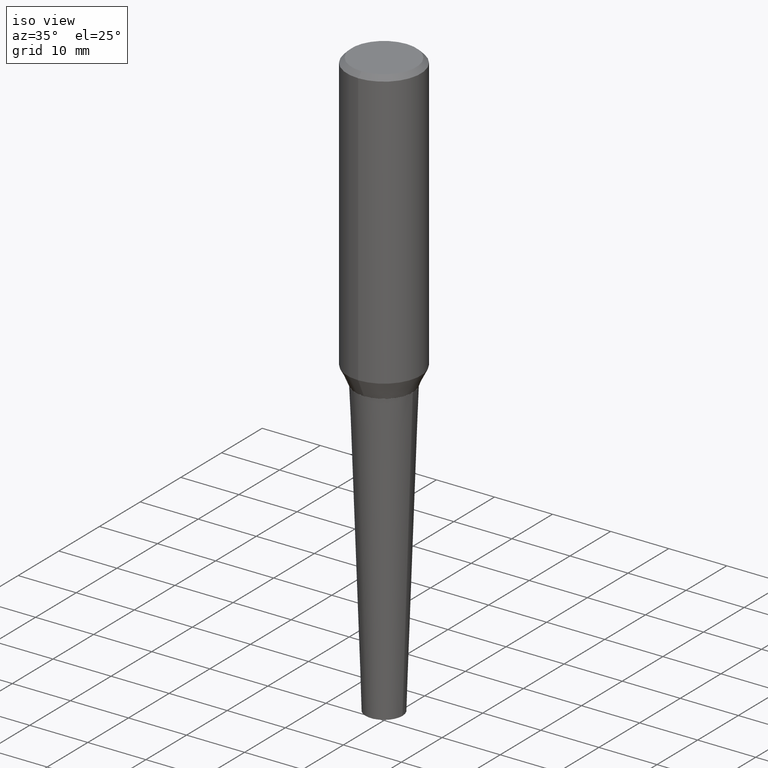
[diagram: clean part render]
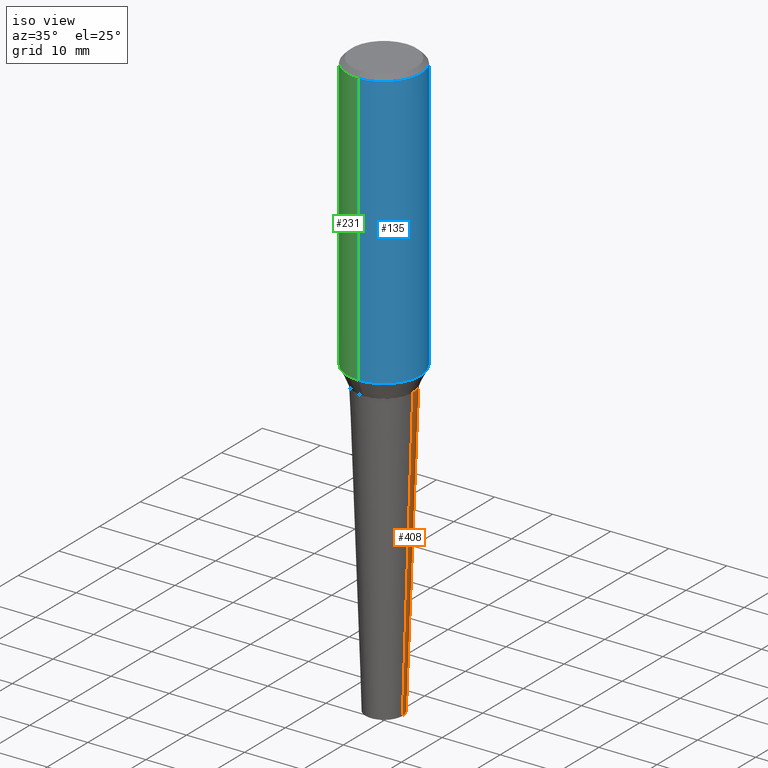
[diagram: same view with three faces highlighted in distinct colors, each labeled with its STEP entity id]
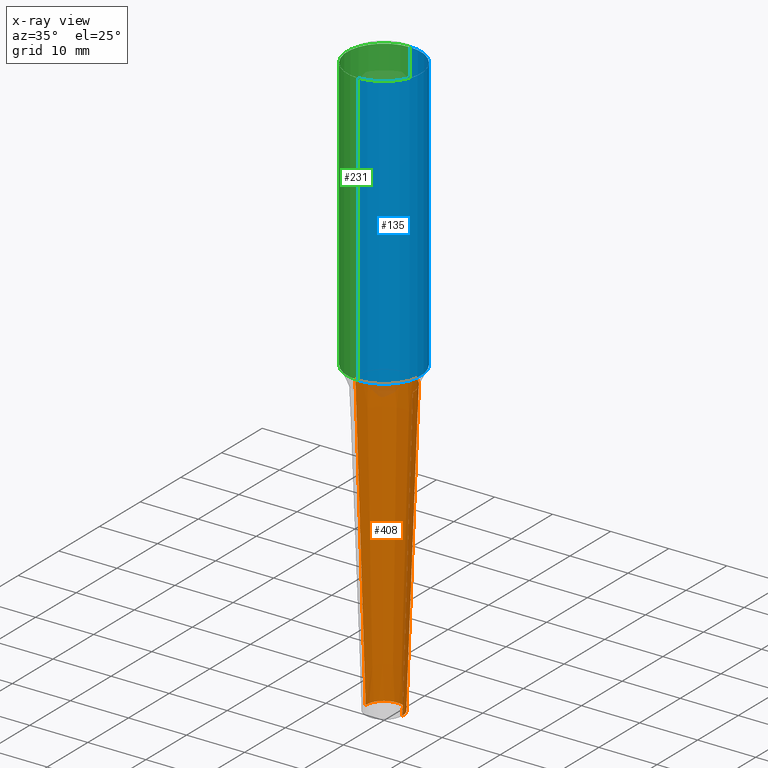
[diagram: x-ray of the same camera — body ghosted, the three highlighted faces saturated]
A machine part, iso view with three faces highlighted in distinct colors.
The next image is the same camera in x-ray (body ghosted, the three faces saturated) — at least one of them is partly hidden behind the body in this view.
Their STEP definitions:

[orange] entity #408 — the highlighted conical surface has half-angle 2 deg.
#5 = AXIS2_PLACEMENT_3D ( 'NONE', #361, #141, #205 ) ;
#29 = LINE ( 'NONE', #102, #58 ) ;
#39 = DIRECTION ( 'NONE',  ( 1.000000000000000000, -6.982962677686265922E-15, 0.000000000000000000 ) ) ;
#52 = VERTEX_POINT ( 'NONE', #339 ) ;
#57 = ORIENTED_EDGE ( 'NONE', *, *, #416, .T. ) ;
#58 = VECTOR ( 'NONE', #346, 39.37007874015748143 ) ;
#76 = DIRECTION ( 'NONE',  ( 1.000000000000000000, -6.982962677686275388E-15, 0.000000000000000000 ) ) ;
#83 = ORIENTED_EDGE ( 'NONE', *, *, #166, .T. ) ;
#91 = VERTEX_POINT ( 'NONE', #312 ) ;
#102 = CARTESIAN_POINT ( 'NONE',  ( -0.1250000000000000555, -1.307774693567245552E-14, -4.000000000000000000 ) ) ;
#113 = AXIS2_PLACEMENT_3D ( 'NONE', #355, #204, #39 ) ;
#116 = FACE_OUTER_BOUND ( 'NONE', #199, .T. ) ;
#122 = CONICAL_SURFACE ( 'NONE', #5, 0.1250000000000000555, 0.03490658503987938838 ) ;
#138 = LINE ( 'NONE', #165, #214 ) ;
#141 = DIRECTION ( 'NONE',  ( -2.445468806185136597E-29, 3.491481338843145583E-15, 1.000000000000000000 ) ) ;
#165 = CARTESIAN_POINT ( 'NONE',  ( 0.1250000000000000555, -1.483879569008336725E-14, -4.000000000000000000 ) ) ;
#166 = EDGE_CURVE ( 'NONE', #52, #265, #29, .T. ) ;
#173 = DIRECTION ( 'NONE',  ( -2.445468806185136597E-29, 3.491481338843145583E-15, 1.000000000000000000 ) ) ;
#199 = EDGE_LOOP ( 'NONE', ( #57, #83, #317, #383 ) ) ;
#202 = AXIS2_PLACEMENT_3D ( 'NONE', #362, #173, #76 ) ;
#204 = DIRECTION ( 'NONE',  ( -2.445468806185136597E-29, 3.491481338843145583E-15, 1.000000000000000000 ) ) ;
#205 = DIRECTION ( 'NONE',  ( 1.000000000000000000, -6.982962677686275388E-15, 0.000000000000000000 ) ) ;
#214 = VECTOR ( 'NONE', #270, 39.37007874015748143 ) ;
#265 = VERTEX_POINT ( 'NONE', #267 ) ;
#266 = CIRCLE ( 'NONE', #202, 0.1250000000000000555 ) ;
#267 = CARTESIAN_POINT ( 'NONE',  ( -0.1948415389834811107, -5.598530276195981594E-15, -2.000000000000000000 ) ) ;
#270 = DIRECTION ( 'NONE',  ( 0.03489949670249377356, 3.245652539804642670E-15, 0.9993908270190959842 ) ) ;
#304 = EDGE_CURVE ( 'NONE', #91, #265, #364, .T. ) ;
#312 = CARTESIAN_POINT ( 'NONE',  ( 0.1948415389834811107, -8.343533872470893997E-15, -2.000000000000000000 ) ) ;
#317 = ORIENTED_EDGE ( 'NONE', *, *, #304, .F. ) ;
#335 = EDGE_CURVE ( 'NONE', #373, #91, #138, .T. ) ;
#339 = CARTESIAN_POINT ( 'NONE',  ( -0.1250000000000000555, -9.338138605934218952E-15, -4.000000000000000000 ) ) ;
#346 = DIRECTION ( 'NONE',  ( -0.03489949670249377356, 3.737330261384597105E-15, 0.9993908270190959842 ) ) ;
#355 = CARTESIAN_POINT ( 'NONE',  ( 4.890937612370273194E-29, -6.982962677686291165E-15, -2.000000000000000000 ) ) ;
#359 = CARTESIAN_POINT ( 'NONE',  ( 0.1250000000000000555, -1.483879569008336725E-14, -4.000000000000000000 ) ) ;
#361 = CARTESIAN_POINT ( 'NONE',  ( 9.781875224740546387E-29, -1.396592535537258233E-14, -4.000000000000000000 ) ) ;
#362 = CARTESIAN_POINT ( 'NONE',  ( 9.781875224740546387E-29, -1.396592535537258233E-14, -4.000000000000000000 ) ) ;
#364 = CIRCLE ( 'NONE', #113, 0.1948415389834811107 ) ;
#373 = VERTEX_POINT ( 'NONE', #359 ) ;
#383 = ORIENTED_EDGE ( 'NONE', *, *, #335, .F. ) ;
#408 = ADVANCED_FACE ( 'NONE', ( #116 ), #122, .T. ) ;
#416 = EDGE_CURVE ( 'NONE', #373, #52, #266, .T. ) ;

[blue] entity #135 — the highlighted cylindrical surface (partial cylindrical patch) has radius 6.35 mm, axis along (-0, 0, 1).
#2 = DIRECTION ( 'NONE',  ( -6.982962677686265133E-15, -1.000000000000000000, 3.192847342595101412E-15 ) ) ;
#21 = ORIENTED_EDGE ( 'NONE', *, *, #251, .T. ) ;
#23 = DIRECTION ( 'NONE',  ( -2.651392540956904653E-29, 3.196586830198859134E-15, 1.000000000000000000 ) ) ;
#40 = CARTESIAN_POINT ( 'NONE',  ( 1.776356839400248295E-15, 0.2499999999999997224, -7.800228530168773250E-16 ) ) ;
#61 = ORIENTED_EDGE ( 'NONE', *, *, #258, .F. ) ;
#65 = DIRECTION ( 'NONE',  ( -6.982962677686265922E-15, -1.000000000000000000, 3.278217592397117045E-15 ) ) ;
#106 = EDGE_CURVE ( 'NONE', #223, #124, #134, .T. ) ;
#112 = AXIS2_PLACEMENT_3D ( 'NONE', #410, #375, #327 ) ;
#124 = VERTEX_POINT ( 'NONE', #198 ) ;
#130 = CYLINDRICAL_SURFACE ( 'NONE', #112, 0.2500000000000002220 ) ;
#131 = CARTESIAN_POINT ( 'NONE',  ( -2.569422259418371487E-30, -5.865037623151615850E-16, -0.03125000000000012490 ) ) ;
#134 = LINE ( 'NONE', #321, #155 ) ;
#135 = ADVANCED_FACE ( 'NONE', ( #384 ), #130, .T. ) ;
#155 = VECTOR ( 'NONE', #222, 39.37007874015748143 ) ;
#162 = DIRECTION ( 'NONE',  ( -2.651392540956904653E-29, 3.196586830198859134E-15, 1.000000000000000000 ) ) ;
#181 = VERTEX_POINT ( 'NONE', #230 ) ;
#183 = ORIENTED_EDGE ( 'NONE', *, *, #106, .F. ) ;
#198 = CARTESIAN_POINT ( 'NONE',  ( -1.715124499442888610E-15, -0.2500000000000010547, -0.03124999999999933040 ) ) ;
#207 = CIRCLE ( 'NONE', #299, 0.2500000000000004996 ) ;
#222 = DIRECTION ( 'NONE',  ( -2.651392540956904653E-29, 3.196586830198859529E-15, 1.000000000000000000 ) ) ;
#223 = VERTEX_POINT ( 'NONE', #379 ) ;
#230 = CARTESIAN_POINT ( 'NONE',  ( 1.745740669421567269E-15, 0.2499999999999998890, -0.03125000000000092287 ) ) ;
#232 = CARTESIAN_POINT ( 'NONE',  ( 1.776356839400272947E-15, 0.2499999999999934497, -1.881712298625419999 ) ) ;
#237 = DIRECTION ( 'NONE',  ( -2.651392540956904653E-29, 3.196586830198859529E-15, 1.000000000000000000 ) ) ;
#251 = EDGE_CURVE ( 'NONE', #223, #287, #351, .T. ) ;
#258 = EDGE_CURVE ( 'NONE', #124, #181, #207, .T. ) ;
#282 = AXIS2_PLACEMENT_3D ( 'NONE', #349, #23, #65 ) ;
#285 = ORIENTED_EDGE ( 'NONE', *, *, #394, .T. ) ;
#287 = VERTEX_POINT ( 'NONE', #232 ) ;
#299 = AXIS2_PLACEMENT_3D ( 'NONE', #131, #162, #2 ) ;
#306 = LINE ( 'NONE', #40, #309 ) ;
#309 = VECTOR ( 'NONE', #237, 39.37007874015748143 ) ;
#315 = EDGE_LOOP ( 'NONE', ( #21, #285, #61, #183 ) ) ;
#321 = CARTESIAN_POINT ( 'NONE',  ( -1.745740669421571411E-15, -0.2500000000000006661, 8.182705620825534255E-16 ) ) ;
#327 = DIRECTION ( 'NONE',  ( -6.982962677686265133E-15, -1.000000000000000000, 3.196586830198858740E-15 ) ) ;
#349 = CARTESIAN_POINT ( 'NONE',  ( 4.649359709955567385E-29, -6.501667175880684624E-15, -1.881712298625419111 ) ) ;
#351 = CIRCLE ( 'NONE', #282, 0.2499999999999999167 ) ;
#375 = DIRECTION ( 'NONE',  ( -2.651392540956904653E-29, 3.196586830198859134E-15, 1.000000000000000000 ) ) ;
#379 = CARTESIAN_POINT ( 'NONE',  ( -1.745740669421519346E-15, -0.2500000000000064393, -1.881712298625418445 ) ) ;
#384 = FACE_OUTER_BOUND ( 'NONE', #315, .T. ) ;
#394 = EDGE_CURVE ( 'NONE', #287, #181, #306, .T. ) ;
#410 = CARTESIAN_POINT ( 'NONE',  ( -3.397982428467408395E-30, -4.866104238714468673E-16, 1.912385453283800096E-17 ) ) ;

[green] entity #231 — the highlighted cylindrical surface (partial cylindrical patch) has radius 6.35 mm, axis along (-0, 0, 1).
#26 = CYLINDRICAL_SURFACE ( 'NONE', #170, 0.2500000000000002220 ) ;
#40 = CARTESIAN_POINT ( 'NONE',  ( 1.776356839400248295E-15, 0.2499999999999997224, -7.800228530168773250E-16 ) ) ;
#70 = EDGE_LOOP ( 'NONE', ( #268, #406, #294, #323 ) ) ;
#106 = EDGE_CURVE ( 'NONE', #223, #124, #134, .T. ) ;
#124 = VERTEX_POINT ( 'NONE', #198 ) ;
#125 = DIRECTION ( 'NONE',  ( -2.651392540956904653E-29, 3.196586830198859134E-15, 1.000000000000000000 ) ) ;
#133 = EDGE_CURVE ( 'NONE', #287, #223, #194, .T. ) ;
#134 = LINE ( 'NONE', #321, #155 ) ;
#151 = DIRECTION ( 'NONE',  ( -6.982962677686265133E-15, -1.000000000000000000, 3.192847342595101412E-15 ) ) ;
#152 = FACE_OUTER_BOUND ( 'NONE', #70, .T. ) ;
#155 = VECTOR ( 'NONE', #222, 39.37007874015748143 ) ;
#160 = CARTESIAN_POINT ( 'NONE',  ( 4.649359709955567385E-29, -6.501667175880684624E-15, -1.881712298625419111 ) ) ;
#170 = AXIS2_PLACEMENT_3D ( 'NONE', #218, #415, #325 ) ;
#172 = EDGE_CURVE ( 'NONE', #181, #124, #212, .T. ) ;
#181 = VERTEX_POINT ( 'NONE', #230 ) ;
#194 = CIRCLE ( 'NONE', #414, 0.2499999999999999167 ) ;
#198 = CARTESIAN_POINT ( 'NONE',  ( -1.715124499442888610E-15, -0.2500000000000010547, -0.03124999999999933040 ) ) ;
#212 = CIRCLE ( 'NONE', #322, 0.2500000000000004996 ) ;
#218 = CARTESIAN_POINT ( 'NONE',  ( -3.397982428467408395E-30, -4.866104238714468673E-16, 1.912385453283800096E-17 ) ) ;
#222 = DIRECTION ( 'NONE',  ( -2.651392540956904653E-29, 3.196586830198859529E-15, 1.000000000000000000 ) ) ;
#223 = VERTEX_POINT ( 'NONE', #379 ) ;
#224 = DIRECTION ( 'NONE',  ( -6.982962677686265922E-15, -1.000000000000000000, 3.278217592397117045E-15 ) ) ;
#230 = CARTESIAN_POINT ( 'NONE',  ( 1.745740669421567269E-15, 0.2499999999999998890, -0.03125000000000092287 ) ) ;
#231 = ADVANCED_FACE ( 'NONE', ( #152 ), #26, .T. ) ;
#232 = CARTESIAN_POINT ( 'NONE',  ( 1.776356839400272947E-15, 0.2499999999999934497, -1.881712298625419999 ) ) ;
#237 = DIRECTION ( 'NONE',  ( -2.651392540956904653E-29, 3.196586830198859529E-15, 1.000000000000000000 ) ) ;
#268 = ORIENTED_EDGE ( 'NONE', *, *, #394, .F. ) ;
#287 = VERTEX_POINT ( 'NONE', #232 ) ;
#289 = DIRECTION ( 'NONE',  ( -2.651392540956904653E-29, 3.196586830198859134E-15, 1.000000000000000000 ) ) ;
#294 = ORIENTED_EDGE ( 'NONE', *, *, #106, .T. ) ;
#306 = LINE ( 'NONE', #40, #309 ) ;
#309 = VECTOR ( 'NONE', #237, 39.37007874015748143 ) ;
#321 = CARTESIAN_POINT ( 'NONE',  ( -1.745740669421571411E-15, -0.2500000000000006661, 8.182705620825534255E-16 ) ) ;
#322 = AXIS2_PLACEMENT_3D ( 'NONE', #343, #125, #151 ) ;
#323 = ORIENTED_EDGE ( 'NONE', *, *, #172, .F. ) ;
#325 = DIRECTION ( 'NONE',  ( -6.982962677686265133E-15, -1.000000000000000000, 3.196586830198858740E-15 ) ) ;
#343 = CARTESIAN_POINT ( 'NONE',  ( -2.569422259418371487E-30, -5.865037623151615850E-16, -0.03125000000000012490 ) ) ;
#379 = CARTESIAN_POINT ( 'NONE',  ( -1.745740669421519346E-15, -0.2500000000000064393, -1.881712298625418445 ) ) ;
#394 = EDGE_CURVE ( 'NONE', #287, #181, #306, .T. ) ;
#406 = ORIENTED_EDGE ( 'NONE', *, *, #133, .T. ) ;
#414 = AXIS2_PLACEMENT_3D ( 'NONE', #160, #289, #224 ) ;
#415 = DIRECTION ( 'NONE',  ( -2.651392540956904653E-29, 3.196586830198859134E-15, 1.000000000000000000 ) ) ;